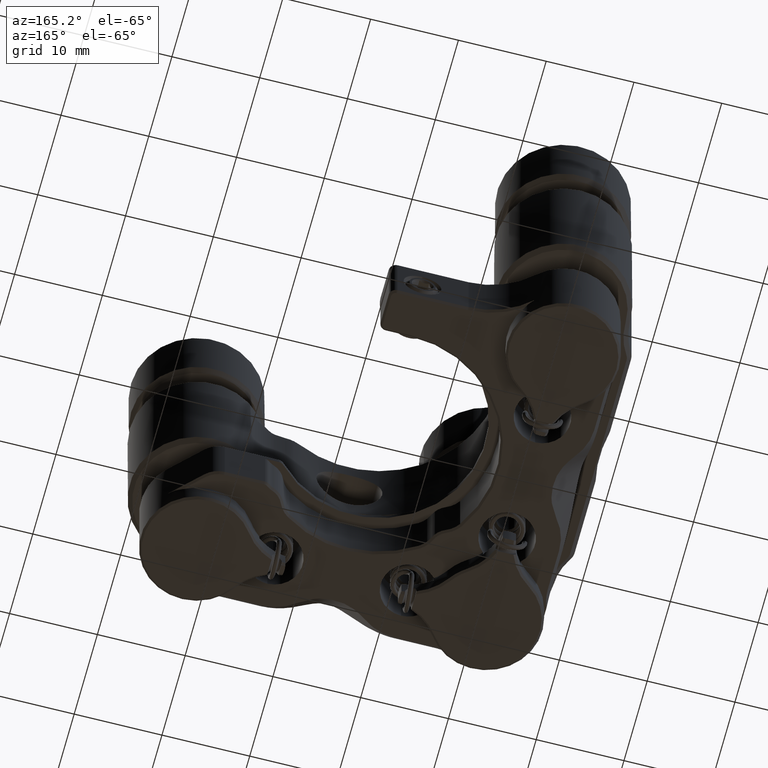
[diagram: clean part render]
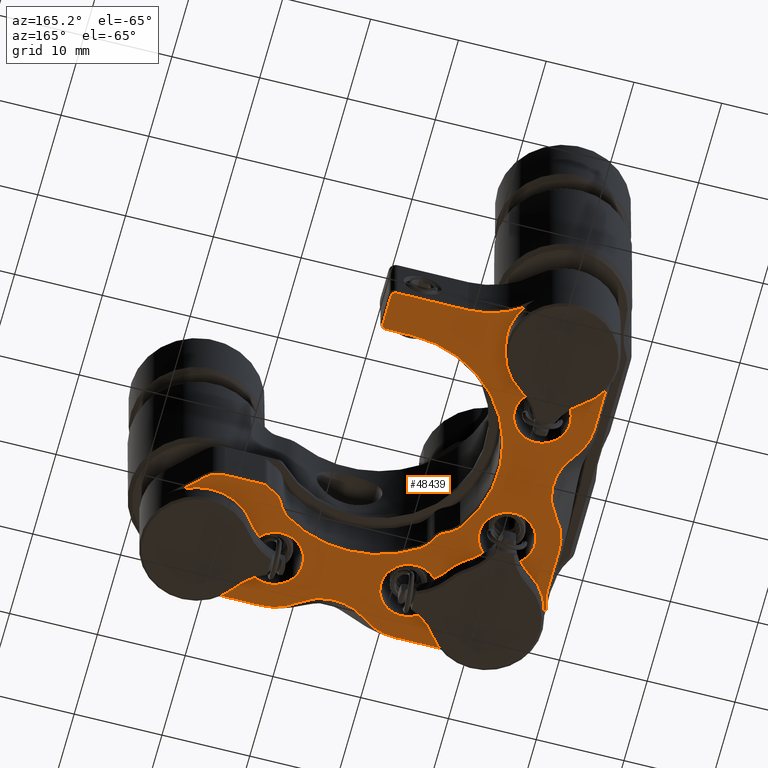
[diagram: same view with one face highlighted and labeled with its STEP entity id]
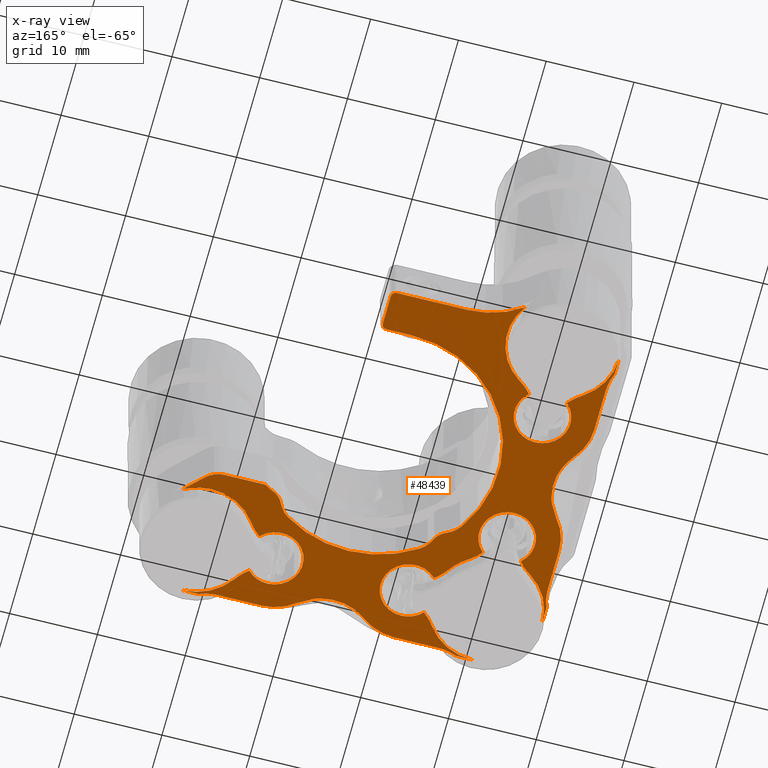
[diagram: x-ray of the same camera — body ghosted, the highlighted face saturated]
A machine part, auxiliary view. The second image highlights one B-rep face of the part: STEP entity #48439.
The next image is the same camera in x-ray: the body ghosted, the highlighted face saturated — about 0% of this face is hidden behind the body in this view.
In plain terms, the highlighted planar face has unit normal (0, 0, -1).
Its self-contained STEP definition (entity closure, byte-faithful):
#6 = EDGE_CURVE ( 'NONE', #59209, #39940, #58303, .T. ) ;
#123 = CARTESIAN_POINT ( 'NONE',  ( 8.861151733613590764, 36.24409739724867308, 15.51670909685328681 ) ) ;
#201 = LINE ( 'NONE', #34823, #49098 ) ;
#246 = ORIENTED_EDGE ( 'NONE', *, *, #6, .T. ) ;
#331 = VECTOR ( 'NONE', #18007, 1000.000000000000000 ) ;
#342 = CARTESIAN_POINT ( 'NONE',  ( 32.82147725212203682, 6.200771981201799399, 15.51670909685364919 ) ) ;
#688 = CARTESIAN_POINT ( 'NONE',  ( 18.91631536147838233, 6.300591055868965285, 15.51670909685326727 ) ) ;
#734 = EDGE_CURVE ( 'NONE', #24087, #38445, #39367, .T. ) ;
#787 = EDGE_CURVE ( 'NONE', #6134, #23797, #12484, .T. ) ;
#904 = DIRECTION ( 'NONE',  ( 6.283250385428280888E-15, 1.000000000000000000, 0.000000000000000000 ) ) ;
#1234 = CARTESIAN_POINT ( 'NONE',  ( 10.96324984578454398, 34.55253646458597672, 15.51670909685328681 ) ) ;
#1272 = ORIENTED_EDGE ( 'NONE', *, *, #24888, .T. ) ;
#1330 = CARTESIAN_POINT ( 'NONE',  ( 21.24115165186079324, 7.293800976714504891, 15.51670909685326016 ) ) ;
#1339 = CIRCLE ( 'NONE', #19938, 5.983382579064568496 ) ;
#1415 = DIRECTION ( 'NONE',  ( -1.000000000000000000, 1.702056126997398298E-37, -6.132303471447325083E-21 ) ) ;
#1460 = ORIENTED_EDGE ( 'NONE', *, *, #25270, .T. ) ;
#1519 = CIRCLE ( 'NONE', #55223, 2.250000000044598103 ) ;
#1533 = AXIS2_PLACEMENT_3D ( 'NONE', #43255, #38082, #47164 ) ;
#2179 = CARTESIAN_POINT ( 'NONE',  ( 5.296791629168940752, 17.36936494950912291, 15.51670909685329214 ) ) ;
#2299 = CARTESIAN_POINT ( 'NONE',  ( 17.88407073383996959, 17.33046564734517148, 15.51670909686848709 ) ) ;
#2327 = CARTESIAN_POINT ( 'NONE',  ( 14.11641928587390105, 15.67845750169307628, 15.51670909685329391 ) ) ;
#2604 = EDGE_CURVE ( 'NONE', #32705, #53474, #50886, .T. ) ;
#2675 = CARTESIAN_POINT ( 'NONE',  ( 10.96324984578454398, 6.198773913061335961, 15.51670909685328681 ) ) ;
#2817 = CARTESIAN_POINT ( 'NONE',  ( 3.360655762899047883, 23.24447991452392159, 15.51670909685326905 ) ) ;
#2838 = CARTESIAN_POINT ( 'NONE',  ( 10.96324984578454398, 20.51409739724833869, 15.51670909685328681 ) ) ;
#3028 = EDGE_CURVE ( 'NONE', #20795, #56410, #6448, .T. ) ;
#3265 = AXIS2_PLACEMENT_3D ( 'NONE', #25042, #59016, #49627 ) ;
#3586 = EDGE_CURVE ( 'NONE', #10754, #62251, #13823, .T. ) ;
#3608 = CIRCLE ( 'NONE', #1533, 2.750000000021686652 ) ;
#3896 = VERTEX_POINT ( 'NONE', #48770 ) ;
#3919 = CARTESIAN_POINT ( 'NONE',  ( 3.205602832408788849, 34.44357408373780061, 15.51670909685337030 ) ) ;
#3965 = DIRECTION ( 'NONE',  ( -5.334593189754186989E-14, 1.000000000000000000, 3.769006057978502123E-15 ) ) ;
#4066 = DIRECTION ( 'NONE',  ( 6.132303471447325835E-21, 2.775557561562890427E-17, -1.000000000000000000 ) ) ;
#4231 = AXIS2_PLACEMENT_3D ( 'NONE', #61749, #31984, #7710 ) ;
#4276 = AXIS2_PLACEMENT_3D ( 'NONE', #5676, #59716, #15376 ) ;
#4791 = ORIENTED_EDGE ( 'NONE', *, *, #18426, .T. ) ;
#4939 = ORIENTED_EDGE ( 'NONE', *, *, #56791, .T. ) ;
#5001 = AXIS2_PLACEMENT_3D ( 'NONE', #18728, #18413, #39117 ) ;
#5024 = CARTESIAN_POINT ( 'NONE',  ( 36.11917480764878263, 17.87607432321287604, 15.51670909676001386 ) ) ;
#5091 = AXIS2_PLACEMENT_3D ( 'NONE', #13335, #12702, #47960 ) ;
#5140 = DIRECTION ( 'NONE',  ( -0.000000000000000000, 0.000000000000000000, -1.000000000000000000 ) ) ;
#5197 = CARTESIAN_POINT ( 'NONE',  ( 30.15680403972596224, 6.888988158281437180, 15.51670909685328503 ) ) ;
#5397 = VERTEX_POINT ( 'NONE', #31113 ) ;
#5513 = CARTESIAN_POINT ( 'NONE',  ( 30.49562727661677286, 6.722090202084543442, 15.51670909685326016 ) ) ;
#5630 = AXIS2_PLACEMENT_3D ( 'NONE', #59307, #49279, #18857 ) ;
#5676 = CARTESIAN_POINT ( 'NONE',  ( 25.37115173361324949, 28.62409739724837365, 15.51670909685328503 ) ) ;
#6082 = EDGE_CURVE ( 'NONE', #20523, #8197, #31143, .T. ) ;
#6134 = VERTEX_POINT ( 'NONE', #18120 ) ;
#6192 = VERTEX_POINT ( 'NONE', #28796 ) ;
#6388 = LINE ( 'NONE', #15760, #8725 ) ;
#6404 = CARTESIAN_POINT ( 'NONE',  ( 36.62588418135264590, 8.549737292803969879, 15.51670909685329214 ) ) ;
#6448 = CIRCLE ( 'NONE', #42620, 6.477000000000003865 ) ;
#6608 = DIRECTION ( 'NONE',  ( -6.132303471447325083E-21, -2.775557561562890118E-17, 1.000000000000000000 ) ) ;
#6645 = CARTESIAN_POINT ( 'NONE',  ( 23.26851492442139602, 8.654519140300910962, 15.51670909685329747 ) ) ;
#6753 = EDGE_CURVE ( 'NONE', #17567, #24087, #44560, .T. ) ;
#6768 = DIRECTION ( 'NONE',  ( -0.000000000000000000, 0.000000000000000000, -1.000000000000000000 ) ) ;
#6779 = VERTEX_POINT ( 'NONE', #58479 ) ;
#6826 = CARTESIAN_POINT ( 'NONE',  ( 19.64722771176871063, 6.488614178602328586, 15.51670909685330102 ) ) ;
#6830 = CARTESIAN_POINT ( 'NONE',  ( 36.62588418135266721, 15.67845750169266594, 15.51670909685329214 ) ) ;
#6909 = ORIENTED_EDGE ( 'NONE', *, *, #45809, .T. ) ;
#7024 = DIRECTION ( 'NONE',  ( -0.000000000000000000, -1.000000000000000000, -2.775557561562890118E-17 ) ) ;
#7353 = CARTESIAN_POINT ( 'NONE',  ( 2.989157444325956536, 21.79792456913160947, 15.51670909685325661 ) ) ;
#7390 = DIRECTION ( 'NONE',  ( 0.000000000000000000, 1.000000000000000000, 0.000000000000000000 ) ) ;
#7499 = AXIS2_PLACEMENT_3D ( 'NONE', #24918, #30092, #34950 ) ;
#7555 = ORIENTED_EDGE ( 'NONE', *, *, #46094, .T. ) ;
#7710 = DIRECTION ( 'NONE',  ( 1.000000000000000000, 0.000000000000000000, 0.000000000000000000 ) ) ;
#7727 = AXIS2_PLACEMENT_3D ( 'NONE', #57987, #57355, #17868 ) ;
#8180 = ORIENTED_EDGE ( 'NONE', *, *, #734, .T. ) ;
#8197 = VERTEX_POINT ( 'NONE', #54509 ) ;
#8218 = CARTESIAN_POINT ( 'NONE',  ( 2.945828249426302836, 16.17809739724860307, 15.51670909685330280 ) ) ;
#8451 = DIRECTION ( 'NONE',  ( 0.000000000000000000, -1.000000000000000000, 0.000000000000000000 ) ) ;
#8565 = CIRCLE ( 'NONE', #12715, 6.476999999999982549 ) ;
#8575 = EDGE_CURVE ( 'NONE', #51565, #15651, #17716, .T. ) ;
#8725 = VECTOR ( 'NONE', #7024, 1000.000000000000000 ) ;
#8765 = CARTESIAN_POINT ( 'NONE',  ( 3.636042494646491985, 33.40974970336109351, 15.51670909685339872 ) ) ;
#9079 = CARTESIAN_POINT ( 'NONE',  ( 2.511151733613385062, 12.11409739724846446, 15.51670909685329214 ) ) ;
#9350 = AXIS2_PLACEMENT_3D ( 'NONE', #46199, #16421, #60444 ) ;
#9490 = EDGE_CURVE ( 'NONE', #35488, #35011, #21102, .T. ) ;
#9589 = LINE ( 'NONE', #29005, #331 ) ;
#10047 = CARTESIAN_POINT ( 'NONE',  ( 31.54160748197473652, 6.362522059170191646, 15.51670909685327615 ) ) ;
#10389 = CARTESIAN_POINT ( 'NONE',  ( 20.32514561912553219, 6.758897102430996284, 15.51670909685328326 ) ) ;
#10432 = AXIS2_PLACEMENT_3D ( 'NONE', #18753, #62144, #62463 ) ;
#10601 = VERTEX_POINT ( 'NONE', #39720 ) ;
#10629 = DIRECTION ( 'NONE',  ( 1.000000000000000000, 3.154042683407997382E-14, 0.000000000000000000 ) ) ;
#10754 = VERTEX_POINT ( 'NONE', #41959 ) ;
#10927 = EDGE_CURVE ( 'NONE', #38445, #6134, #6388, .T. ) ;
#11012 = CARTESIAN_POINT ( 'NONE',  ( 31.19062842010267289, 6.458548496043701626, 15.51670909685327437 ) ) ;
#11073 = ORIENTED_EDGE ( 'NONE', *, *, #18788, .T. ) ;
#11114 = CARTESIAN_POINT ( 'NONE',  ( 14.11641928587395078, 8.549737292803968103, 15.51670909685329214 ) ) ;
#11177 = CARTESIAN_POINT ( 'NONE',  ( 27.47378854280558258, 8.654519140300832802, 15.51670909685328326 ) ) ;
#11209 = VERTEX_POINT ( 'NONE', #62326 ) ;
#11537 = CARTESIAN_POINT ( 'NONE',  ( 14.13963386371304765, 48.66398782079158281, 15.51670909685298660 ) ) ;
#11539 = EDGE_CURVE ( 'NONE', #40010, #3896, #1519, .T. ) ;
#11760 = CARTESIAN_POINT ( 'NONE',  ( 10.96324984578454398, 42.17409739724836015, 15.51670909685328681 ) ) ;
#11902 = DIRECTION ( 'NONE',  ( 0.000000000000000000, 1.000000000000000000, 2.775557561562890118E-17 ) ) ;
#12126 = CARTESIAN_POINT ( 'NONE',  ( 29.22754810973619755, 7.506371735881634422, 15.51670909685328503 ) ) ;
#12402 = ORIENTED_EDGE ( 'NONE', *, *, #12708, .T. ) ;
#12441 = CIRCLE ( 'NONE', #45468, 3.175000000000000711 ) ;
#12474 = EDGE_CURVE ( 'NONE', #43755, #60164, #33523, .T. ) ;
#12484 = CIRCLE ( 'NONE', #56930, 0.5499999999756255420 ) ;
#12531 = VECTOR ( 'NONE', #38745, 1000.000000000000000 ) ;
#12576 = CARTESIAN_POINT ( 'NONE',  ( 11.01400189239910787, 38.57773429998594139, 15.51670909685328681 ) ) ;
#12702 = DIRECTION ( 'NONE',  ( 6.132303471447325083E-21, 2.775557561562890118E-17, -1.000000000000000000 ) ) ;
#12708 = EDGE_CURVE ( 'NONE', #17506, #37340, #16568, .T. ) ;
#12715 = AXIS2_PLACEMENT_3D ( 'NONE', #38447, #13222, #37817 ) ;
#13027 = CARTESIAN_POINT ( 'NONE',  ( 44.94700560386390009, 17.67494625747351833, 15.51670909685328859 ) ) ;
#13102 = CARTESIAN_POINT ( 'NONE',  ( 34.05050991263693305, 18.76101813623516534, 15.51670909684893651 ) ) ;
#13186 = VECTOR ( 'NONE', #1415, 1000.000000000000000 ) ;
#13222 = DIRECTION ( 'NONE',  ( 6.132303471447325083E-21, 2.775557561562890118E-17, -1.000000000000000000 ) ) ;
#13246 = CARTESIAN_POINT ( 'NONE',  ( 6.708301574827993718, 18.67046049451100487, 15.51670909685329391 ) ) ;
#13303 = CARTESIAN_POINT ( 'NONE',  ( 2.945828249426485357, 36.18992986962069125, 15.51670909685328681 ) ) ;
#13335 = CARTESIAN_POINT ( 'NONE',  ( 1.661144322635577764, 22.72973785281526915, 15.51670909685329391 ) ) ;
#13350 = EDGE_CURVE ( 'NONE', #56410, #6192, #51960, .T. ) ;
#13360 = DIRECTION ( 'NONE',  ( -6.132303471447325835E-21, -2.775557561562890427E-17, 1.000000000000000000 ) ) ;
#13561 = DIRECTION ( 'NONE',  ( -1.000000000000000000, 1.702056126997398298E-37, -6.132303471447325083E-21 ) ) ;
#13581 = CIRCLE ( 'NONE', #46666, 3.174999999999998934 ) ;
#13673 = VERTEX_POINT ( 'NONE', #2179 ) ;
#13718 = DIRECTION ( 'NONE',  ( 6.132303471447325083E-21, 2.775557561562890118E-17, -1.000000000000000000 ) ) ;
#13823 = LINE ( 'NONE', #28708, #64023 ) ;
#13935 = CARTESIAN_POINT ( 'NONE',  ( 2.951820773749881166, 35.84350613336765434, 15.51670909685344313 ) ) ;
#13952 = CIRCLE ( 'NONE', #18048, 5.983382579064860707 ) ;
#14198 = CARTESIAN_POINT ( 'NONE',  ( 12.92515173361337588, 6.198773913061372376, 15.51670909685337918 ) ) ;
#14256 = CARTESIAN_POINT ( 'NONE',  ( 20.12614174692483715, 46.73409739724846190, 15.51670909685329036 ) ) ;
#14501 = CARTESIAN_POINT ( 'NONE',  ( 14.07751998369066548, 21.13701639748477490, 15.51670909682699140 ) ) ;
#14524 = CIRCLE ( 'NONE', #9350, 6.349999999999823785 ) ;
#14780 = VERTEX_POINT ( 'NONE', #17072 ) ;
#15026 = EDGE_CURVE ( 'NONE', #39151, #20523, #9589, .T. ) ;
#15095 = ORIENTED_EDGE ( 'NONE', *, *, #57775, .T. ) ;
#15154 = CARTESIAN_POINT ( 'NONE',  ( 20.12614174692483715, 56.98409739724844059, 15.51670909685329214 ) ) ;
#15273 = DIRECTION ( 'NONE',  ( 4.270088556252530661E-15, 1.000000000000000000, 0.000000000000000000 ) ) ;
#15376 = DIRECTION ( 'NONE',  ( -1.000000000000000000, 0.000000000000000000, 0.000000000000000000 ) ) ;
#15642 = AXIS2_PLACEMENT_3D ( 'NONE', #63440, #43061, #28188 ) ;
#15651 = VERTEX_POINT ( 'NONE', #37044 ) ;
#15760 = CARTESIAN_POINT ( 'NONE',  ( 28.76115173361358401, 34.55253646458597672, 15.51670909685328681 ) ) ;
#15795 = DIRECTION ( 'NONE',  ( 0.000000000000000000, 1.000000000000000000, -1.692413147294446709E-16 ) ) ;
#15853 = CARTESIAN_POINT ( 'NONE',  ( 32.93698420598570209, 6.198773913061456753, 15.51670909685328681 ) ) ;
#15881 = CARTESIAN_POINT ( 'NONE',  ( 18.17284445048737140, 6.205515148600373010, 15.51670909685326727 ) ) ;
#16202 = CARTESIAN_POINT ( 'NONE',  ( 20.94762844787134526, 7.099236543531233679, 15.51670909685329036 ) ) ;
#16211 = EDGE_CURVE ( 'NONE', #34321, #45787, #41530, .T. ) ;
#16421 = DIRECTION ( 'NONE',  ( -6.132303471447325835E-21, -2.775557561562890427E-17, 1.000000000000000000 ) ) ;
#16472 = ORIENTED_EDGE ( 'NONE', *, *, #54048, .T. ) ;
#16555 = DIRECTION ( 'NONE',  ( -0.000000000000000000, 2.668805347638552396E-16, 1.000000000000000000 ) ) ;
#16568 = LINE ( 'NONE', #59945, #45745 ) ;
#16619 = ORIENTED_EDGE ( 'NONE', *, *, #40320, .F. ) ;
#16938 = EDGE_CURVE ( 'NONE', #5397, #30562, #51802, .T. ) ;
#17059 = CIRCLE ( 'NONE', #7727, 3.249999999940699436 ) ;
#17072 = CARTESIAN_POINT ( 'NONE',  ( 29.22754810973619755, 7.506371735881634422, 15.51670909685328503 ) ) ;
#17506 = VERTEX_POINT ( 'NONE', #53406 ) ;
#17567 = VERTEX_POINT ( 'NONE', #14256 ) ;
#17625 = EDGE_CURVE ( 'NONE', #3896, #19634, #36357, .T. ) ;
#17679 = CARTESIAN_POINT ( 'NONE',  ( 4.182549286673516775, 24.67647421621652271, 15.51670909685326549 ) ) ;
#17716 = CIRCLE ( 'NONE', #54907, 6.476999999999836888 ) ;
#17868 = DIRECTION ( 'NONE',  ( 0.000000000000000000, 1.000000000000000000, -5.337610695410644152E-16 ) ) ;
#17961 = ORIENTED_EDGE ( 'NONE', *, *, #38799, .F. ) ;
#18007 = DIRECTION ( 'NONE',  ( 0.000000000000000000, 1.000000000000000000, 2.775557561562890118E-17 ) ) ;
#18048 = AXIS2_PLACEMENT_3D ( 'NONE', #43429, #32452, #3965 ) ;
#18120 = CARTESIAN_POINT ( 'NONE',  ( 28.76115173361511879, 42.72409739724837863, 15.51670909685481803 ) ) ;
#18201 = VERTEX_POINT ( 'NONE', #62058 ) ;
#18203 = DIRECTION ( 'NONE',  ( 6.132303471447325835E-21, 2.775557561562890427E-17, -1.000000000000000000 ) ) ;
#18413 = DIRECTION ( 'NONE',  ( 6.132303471447325835E-21, 2.775557561562890427E-17, -1.000000000000000000 ) ) ;
#18426 = EDGE_CURVE ( 'NONE', #44643, #47447, #35635, .T. ) ;
#18509 = CIRCLE ( 'NONE', #5091, 6.477000000000010971 ) ;
#18532 = CARTESIAN_POINT ( 'NONE',  ( 5.296791629169076643, 39.87882984498773453, 15.51670909685328681 ) ) ;
#18610 = EDGE_CURVE ( 'NONE', #45606, #40010, #17059, .T. ) ;
#18728 = CARTESIAN_POINT ( 'NONE',  ( 8.861151733613590764, 45.13409739724845338, 15.51670909685329569 ) ) ;
#18753 = CARTESIAN_POINT ( 'NONE',  ( -3.037554329637905060, 41.07009739724858122, 15.51670909685332056 ) ) ;
#18788 = EDGE_CURVE ( 'NONE', #62251, #25950, #13952, .T. ) ;
#18857 = DIRECTION ( 'NONE',  ( 0.000000000000000000, 1.000000000000000000, 0.000000000000000000 ) ) ;
#18922 = VERTEX_POINT ( 'NONE', #58306 ) ;
#19102 = CARTESIAN_POINT ( 'NONE',  ( 2.511151733613397496, 13.93918513655420455, 15.51670909685332056 ) ) ;
#19103 = CARTESIAN_POINT ( 'NONE',  ( 2.984330582708210944, 35.49285773074529970, 15.51670909685335609 ) ) ;
#19203 = DIRECTION ( 'NONE',  ( 0.000000000000000000, 1.000000000000000000, 0.000000000000000000 ) ) ;
#19249 = DIRECTION ( 'NONE',  ( 6.132303471447325083E-21, 2.775557561562890118E-17, -1.000000000000000000 ) ) ;
#19426 = CARTESIAN_POINT ( 'NONE',  ( 29.83087531789895408, 7.076290245509283316, 15.51670909685323529 ) ) ;
#19474 = ORIENTED_EDGE ( 'NONE', *, *, #31188, .T. ) ;
#19634 = VERTEX_POINT ( 'NONE', #2299 ) ;
#19651 = ORIENTED_EDGE ( 'NONE', *, *, #3028, .T. ) ;
#19928 = DIRECTION ( 'NONE',  ( 0.000000000000000000, 1.000000000000000000, 2.775557561562890118E-17 ) ) ;
#19938 = AXIS2_PLACEMENT_3D ( 'NONE', #62604, #58058, #62919 ) ;
#19956 = ORIENTED_EDGE ( 'NONE', *, *, #6082, .T. ) ;
#20063 = ORIENTED_EDGE ( 'NONE', *, *, #16938, .T. ) ;
#20066 = CARTESIAN_POINT ( 'NONE',  ( 31.88967203947446549, 6.289260529385912513, 15.51670909685325128 ) ) ;
#20080 = AXIS2_PLACEMENT_3D ( 'NONE', #40841, #16555, #15273 ) ;
#20507 = ORIENTED_EDGE ( 'NONE', *, *, #34678, .T. ) ;
#20523 = VERTEX_POINT ( 'NONE', #46241 ) ;
#20669 = AXIS2_PLACEMENT_3D ( 'NONE', #21108, #19249, #59053 ) ;
#20740 = CARTESIAN_POINT ( 'NONE',  ( 21.42352855258135946, 7.435494950308494388, 15.51670909685326905 ) ) ;
#20795 = VERTEX_POINT ( 'NONE', #54978 ) ;
#21066 = CARTESIAN_POINT ( 'NONE',  ( 19.99153425088872993, 6.613601426534001071, 15.51670909685326727 ) ) ;
#21102 = CIRCLE ( 'NONE', #20080, 3.249999999998531841 ) ;
#21108 = CARTESIAN_POINT ( 'NONE',  ( 16.06115914459125449, 22.72973785281512349, 15.51670909685329391 ) ) ;
#21116 = DIRECTION ( 'NONE',  ( 0.7071067811865523467, -0.7071067811865426878, 0.000000000000000000 ) ) ;
#21195 = ORIENTED_EDGE ( 'NONE', *, *, #55812, .T. ) ;
#21421 = CARTESIAN_POINT ( 'NONE',  ( 15.41751483087560537, 9.961247238463032616, 15.51670909685329214 ) ) ;
#21469 = LINE ( 'NONE', #11760, #13186 ) ;
#21493 = DIRECTION ( 'NONE',  ( 0.000000000000000000, 1.000000000000000000, 0.000000000000000000 ) ) ;
#21523 = CARTESIAN_POINT ( 'NONE',  ( 21.51475535749061052, 7.506371735881695706, 15.51670909685328503 ) ) ;
#21837 = CARTESIAN_POINT ( 'NONE',  ( 28.64296158742597598, 7.889087537354722457, 15.51670909685327970 ) ) ;
#22114 = CARTESIAN_POINT ( 'NONE',  ( 15.50807247261031030, 19.94473921831493612, 15.51670909689340228 ) ) ;
#22265 = AXIS2_PLACEMENT_3D ( 'NONE', #123, #53835, #44129 ) ;
#22289 = EDGE_CURVE ( 'NONE', #36615, #15651, #27767, .T. ) ;
#22544 = CARTESIAN_POINT ( 'NONE',  ( 3.667152124639446953, 23.89515677570729935, 15.51670909685327082 ) ) ;
#22564 = DIRECTION ( 'NONE',  ( 1.000000000000000000, -1.702056126997398298E-37, 6.132303471447325083E-21 ) ) ;
#22684 = CARTESIAN_POINT ( 'NONE',  ( 4.253426072246768719, 32.48049377337135013, 15.51670909685328681 ) ) ;
#22877 = CIRCLE ( 'NONE', #56954, 2.249999999909470194 ) ;
#22973 = AXIS2_PLACEMENT_3D ( 'NONE', #29118, #28482, #52747 ) ;
#23269 = CARTESIAN_POINT ( 'NONE',  ( 10.96324984578454398, 6.198773913061443430, 15.51670909685328681 ) ) ;
#23311 = AXIS2_PLACEMENT_3D ( 'NONE', #50264, #59972, #61256 ) ;
#23457 = VERTEX_POINT ( 'NONE', #55924 ) ;
#23641 = CARTESIAN_POINT ( 'NONE',  ( 2.947826317567121990, 36.07442291575709703, 15.51670909685322819 ) ) ;
#23652 = EDGE_CURVE ( 'NONE', #11209, #48372, #62044, .T. ) ;
#23756 = DIRECTION ( 'NONE',  ( -1.000000000000000000, 3.202566417192030819E-15, 0.000000000000000000 ) ) ;
#23797 = VERTEX_POINT ( 'NONE', #43259 ) ;
#23866 = ORIENTED_EDGE ( 'NONE', *, *, #8575, .T. ) ;
#23946 = AXIS2_PLACEMENT_3D ( 'NONE', #28288, #13718, #19203 ) ;
#24033 = LINE ( 'NONE', #54438, #43088 ) ;
#24087 = VERTEX_POINT ( 'NONE', #33869 ) ;
#24395 = CARTESIAN_POINT ( 'NONE',  ( 4.253426072246713652, 24.76770102112579153, 15.51670909685328681 ) ) ;
#24612 = CARTESIAN_POINT ( 'NONE',  ( 32.59056046973253018, 6.204766437384852118, 15.51670909685307009 ) ) ;
#24753 = CARTESIAN_POINT ( 'NONE',  ( 8.861151733613590764, 45.13409739724845338, 15.51670909685328681 ) ) ;
#24867 = CARTESIAN_POINT ( 'NONE',  ( 5.401573476665959994, 26.52146058805654505, 15.51670909685328859 ) ) ;
#24888 = EDGE_CURVE ( 'NONE', #23457, #30810, #62202, .T. ) ;
#24918 = CARTESIAN_POINT ( 'NONE',  ( 25.37115173361325304, 28.62409739724837365, 15.51670909685328681 ) ) ;
#25042 = CARTESIAN_POINT ( 'NONE',  ( 8.861151733613427339, 21.00409739724835134, 15.51670909685329391 ) ) ;
#25270 = EDGE_CURVE ( 'NONE', #30562, #13673, #18509, .T. ) ;
#25508 = CARTESIAN_POINT ( 'NONE',  ( 36.38837376055408868, 19.96409739724833088, 15.51670909682417054 ) ) ;
#25911 = CARTESIAN_POINT ( 'NONE',  ( 37.81715173361354232, 6.198773913061422114, 15.51670909685332767 ) ) ;
#25950 = VERTEX_POINT ( 'NONE', #25911 ) ;
#25971 = EDGE_CURVE ( 'NONE', #18201, #23457, #27099, .T. ) ;
#26074 = CARTESIAN_POINT ( 'NONE',  ( 40.05606399430840270, 5.764097397248334254, 15.51670909685333122 ) ) ;
#26468 = PLANE ( 'NONE',  #51837 ) ;
#26681 = CARTESIAN_POINT ( 'NONE',  ( 14.62312865957770747, 17.87607432321287959, 15.51670909688273170 ) ) ;
#26718 = CARTESIAN_POINT ( 'NONE',  ( 34.08404356123062939, 22.98569669769931778, 15.51670909685011246 ) ) ;
#26778 = CARTESIAN_POINT ( 'NONE',  ( 4.040855313079537936, 24.49409731549598490, 15.51670909685326727 ) ) ;
#26816 = DIRECTION ( 'NONE',  ( -3.026003786644227922E-30, -2.899235429214355169E-16, 1.000000000000000000 ) ) ;
#26965 = ORIENTED_EDGE ( 'NONE', *, *, #13350, .T. ) ;
#27099 = B_SPLINE_CURVE_WITH_KNOTS ( 'NONE', 3,
 ( #45330, #20740, #1330, #16202, #40476, #10389, #21066, #6826, #60545, #688, #49866, #15881, #60862, #59577 ),
 .UNSPECIFIED., .F., .F.,
 ( 4, 1, 1, 1, 1, 1, 1, 1, 1, 1, 1, 4 ),
 ( 0.000000000000000000, 0.0003497547461281944655, 0.0006992153969944598681, 0.001049534730473287080, 0.001401809981072326631, 0.001757101587139718200, 0.002137688408780979120, 0.002515575518403236933, 0.002889785354124300813, 0.003261576129707187237, 0.003632249136043852553, 0.004003172883301332405 ),
 .UNSPECIFIED. ) ;
#27321 = ORIENTED_EDGE ( 'NONE', *, *, #39679, .T. ) ;
#27602 = ORIENTED_EDGE ( 'NONE', *, *, #61150, .T. ) ;
#27767 = CIRCLE ( 'NONE', #5001, 6.350000000000057376 ) ;
#27925 = DIRECTION ( 'NONE',  ( 0.000000000000000000, -1.000000000000000000, 0.000000000000000000 ) ) ;
#28076 = CARTESIAN_POINT ( 'NONE',  ( -3.037554329638286532, 16.17809739724862794, 15.51670909685332056 ) ) ;
#28188 = DIRECTION ( 'NONE',  ( -1.000000000000000000, 0.000000000000000000, 0.000000000000000000 ) ) ;
#28288 = CARTESIAN_POINT ( 'NONE',  ( 31.26551127804619412, 4.914089986270433030, 15.51670909685329214 ) ) ;
#28393 = DIRECTION ( 'NONE',  ( 6.132303471447325083E-21, 2.775557561562890118E-17, -1.000000000000000000 ) ) ;
#28482 = DIRECTION ( 'NONE',  ( 6.132303471447325083E-21, 2.775557561562890118E-17, -1.000000000000000000 ) ) ;
#28508 = CARTESIAN_POINT ( 'NONE',  ( 3.469144538449616455, 33.74857294025190413, 15.51670909685336497 ) ) ;
#28708 = CARTESIAN_POINT ( 'NONE',  ( 41.88115173361337185, 5.764097397248330701, 15.51670909685329214 ) ) ;
#28796 = CARTESIAN_POINT ( 'NONE',  ( 12.42551183805776382, 17.36936494950929344, 15.51670909685329391 ) ) ;
#28818 = ORIENTED_EDGE ( 'NONE', *, *, #31355, .T. ) ;
#29005 = CARTESIAN_POINT ( 'NONE',  ( 2.945828249426484025, 34.55253646458597672, 15.51670909685328681 ) ) ;
#29118 = CARTESIAN_POINT ( 'NONE',  ( 19.47679218917987143, 4.914089986270611554, 15.51670909685329214 ) ) ;
#29146 = CARTESIAN_POINT ( 'NONE',  ( 4.028206024205502445, 32.77100390907628480, 15.51670909685336142 ) ) ;
#29277 = ORIENTED_EDGE ( 'NONE', *, *, #6753, .T. ) ;
#29416 = CARTESIAN_POINT ( 'NONE',  ( 35.32478863635061117, 9.961247238462922482, 15.51670909685329214 ) ) ;
#29467 = CARTESIAN_POINT ( 'NONE',  ( 29.22754810973619755, 7.506371735881634422, 15.51670909685328503 ) ) ;
#29507 = CARTESIAN_POINT ( 'NONE',  ( 41.88115173361337185, 5.764097397248330701, 15.51670909685329214 ) ) ;
#29591 = ORIENTED_EDGE ( 'NONE', *, *, #63091, .T. ) ;
#29702 = VERTEX_POINT ( 'NONE', #50173 ) ;
#29785 = CARTESIAN_POINT ( 'NONE',  ( 30.84405358100747563, 6.577100956720224545, 15.51670909685328681 ) ) ;
#29889 = B_SPLINE_CURVE_WITH_KNOTS ( 'NONE', 3,
 ( #42283, #46514, #42921, #7353, #52629, #52314, #37432, #2817, #31945, #22544, #62023, #26778, #17679, #56843 ),
 .UNSPECIFIED., .F., .F.,
 ( 4, 1, 1, 1, 1, 1, 1, 1, 1, 1, 1, 4 ),
 ( 3.496446946337351263E-18, 0.0003687888397202533403, 0.0007373283816968955384, 0.001106979259430352974, 0.001479035274036738902, 0.001854747397440102653, 0.002233143694263013332, 0.002586390365938077626, 0.002936638043233334543, 0.003284941060984178634, 0.003632390338399659954, 0.003980132018367484557 ),
 .UNSPECIFIED. ) ;
#30092 = DIRECTION ( 'NONE',  ( -0.000000000000000000, 6.401193638290808678E-17, 1.000000000000000000 ) ) ;
#30562 = VERTEX_POINT ( 'NONE', #13246 ) ;
#30810 = VERTEX_POINT ( 'NONE', #14198 ) ;
#30904 = EDGE_CURVE ( 'NONE', #25950, #61272, #43650, .T. ) ;
#31109 = VECTOR ( 'NONE', #53449, 1000.000000000000000 ) ;
#31113 = CARTESIAN_POINT ( 'NONE',  ( 11.01400189239878813, 18.67046049451093381, 15.51670909685329391 ) ) ;
#31143 = CIRCLE ( 'NONE', #10432, 5.983382579064347340 ) ;
#31188 = EDGE_CURVE ( 'NONE', #18922, #11209, #61534, .T. ) ;
#31278 = EDGE_CURVE ( 'NONE', #32154, #6779, #53068, .T. ) ;
#31355 = EDGE_CURVE ( 'NONE', #36615, #17567, #47080, .T. ) ;
#31733 = CARTESIAN_POINT ( 'NONE',  ( 32.85823273340142237, 17.33046564732236661, 15.51670909687152822 ) ) ;
#31815 = ORIENTED_EDGE ( 'NONE', *, *, #15026, .T. ) ;
#31945 = CARTESIAN_POINT ( 'NONE',  ( 3.505951438796027997, 23.57809128276068478, 15.51670909685327082 ) ) ;
#31984 = DIRECTION ( 'NONE',  ( -0.000000000000000000, 0.000000000000000000, -1.000000000000000000 ) ) ;
#32154 = VERTEX_POINT ( 'NONE', #24395 ) ;
#32319 = VERTEX_POINT ( 'NONE', #36346 ) ;
#32452 = DIRECTION ( 'NONE',  ( 3.769006057978492657E-15, -3.769006057978508434E-15, 1.000000000000000000 ) ) ;
#32705 = VERTEX_POINT ( 'NONE', #11114 ) ;
#33040 = CARTESIAN_POINT ( 'NONE',  ( 32.99115173361312969, 12.11409739724819978, 15.51670909685329214 ) ) ;
#33189 = CARTESIAN_POINT ( 'NONE',  ( 28.76115173361511879, 46.18409739724843632, 15.51670909685481980 ) ) ;
#33255 = CIRCLE ( 'NONE', #53916, 6.349999999999912603 ) ;
#33523 = CIRCLE ( 'NONE', #5630, 6.477000000000142421 ) ;
#33869 = CARTESIAN_POINT ( 'NONE',  ( 28.21115173361358330, 46.73409739724998246, 15.51670909685481980 ) ) ;
#34305 = ORIENTED_EDGE ( 'NONE', *, *, #31278, .T. ) ;
#34321 = VERTEX_POINT ( 'NONE', #29416 ) ;
#34394 = DIRECTION ( 'NONE',  ( 6.826743284340431398E-15, 1.000000000000000000, 0.000000000000000000 ) ) ;
#34409 = AXIS2_PLACEMENT_3D ( 'NONE', #26718, #46455, #23756 ) ;
#34678 = EDGE_CURVE ( 'NONE', #56182, #18922, #35413, .T. ) ;
#34682 = EDGE_CURVE ( 'NONE', #30810, #59209, #1339, .T. ) ;
#34823 = CARTESIAN_POINT ( 'NONE',  ( 2.945828249426303724, 34.55253646458597672, 15.51670909685328681 ) ) ;
#34851 = ORIENTED_EDGE ( 'NONE', *, *, #11539, .T. ) ;
#34950 = DIRECTION ( 'NONE',  ( 0.000000000000000000, 1.000000000000000000, -1.280238727658160996E-16 ) ) ;
#35011 = VERTEX_POINT ( 'NONE', #13102 ) ;
#35223 = CARTESIAN_POINT ( 'NONE',  ( 4.253426072246713652, 24.76770102112579153, 15.51670909685328681 ) ) ;
#35278 = CARTESIAN_POINT ( 'NONE',  ( 29.32440664678741982, 7.431281466432227312, 15.51670909685326727 ) ) ;
#35332 = VERTEX_POINT ( 'NONE', #6830 ) ;
#35397 = CIRCLE ( 'NONE', #7499, 13.54999999999999183 ) ;
#35409 = CARTESIAN_POINT ( 'NONE',  ( 8.861151733613253256, 5.764097397248399979, 15.51670909685329214 ) ) ;
#35413 = CIRCLE ( 'NONE', #34409, 3.249999999995860200 ) ;
#35488 = VERTEX_POINT ( 'NONE', #31733 ) ;
#35541 = CARTESIAN_POINT ( 'NONE',  ( 6.708301574828285929, 38.57773429998613324, 15.51670909685328681 ) ) ;
#35635 = CIRCLE ( 'NONE', #42865, 5.983382579064607576 ) ;
#35725 = AXIS2_PLACEMENT_3D ( 'NONE', #15154, #55274, #15795 ) ;
#36080 = ORIENTED_EDGE ( 'NONE', *, *, #25971, .T. ) ;
#36346 = CARTESIAN_POINT ( 'NONE',  ( 2.511151733613385062, 12.11409739724841650, 15.51670909685329214 ) ) ;
#36357 = CIRCLE ( 'NONE', #15642, 3.250000000006379786 ) ;
#36615 = VERTEX_POINT ( 'NONE', #11537 ) ;
#36723 = CARTESIAN_POINT ( 'NONE',  ( 22.09934187980087117, 7.889087537354760649, 15.51670909685329747 ) ) ;
#36810 = DIRECTION ( 'NONE',  ( 6.132303471447325083E-21, 2.775557561562890118E-17, -1.000000000000000000 ) ) ;
#36841 = DIRECTION ( 'NONE',  ( 8.915148944834140332E-15, 1.000000000000000000, 2.899235429214354676E-16 ) ) ;
#36979 = DIRECTION ( 'NONE',  ( -1.000000000000000000, 1.702056126997398298E-37, -6.132303471447325083E-21 ) ) ;
#37044 = CARTESIAN_POINT ( 'NONE',  ( 12.42551183805843174, 39.87882984498786243, 15.51670909685328859 ) ) ;
#37109 = EDGE_CURVE ( 'NONE', #23797, #56044, #21469, .T. ) ;
#37340 = VERTEX_POINT ( 'NONE', #13027 ) ;
#37432 = CARTESIAN_POINT ( 'NONE',  ( 3.235668514967367848, 22.90017337540389164, 15.51670909685327437 ) ) ;
#37451 = CARTESIAN_POINT ( 'NONE',  ( 32.93698420598570209, 6.198773913061456753, 15.51670909685328681 ) ) ;
#37817 = DIRECTION ( 'NONE',  ( 0.000000000000000000, 1.000000000000000000, 0.000000000000000000 ) ) ;
#37877 = ORIENTED_EDGE ( 'NONE', *, *, #23652, .T. ) ;
#37961 = ORIENTED_EDGE ( 'NONE', *, *, #16211, .T. ) ;
#38082 = DIRECTION ( 'NONE',  ( -0.000000000000000000, 0.000000000000000000, -1.000000000000000000 ) ) ;
#38365 = ORIENTED_EDGE ( 'NONE', *, *, #63705, .F. ) ;
#38445 = VERTEX_POINT ( 'NONE', #33189 ) ;
#38447 = CARTESIAN_POINT ( 'NONE',  ( 31.26551127804653873, 19.31410480822610864, 15.51670909685329391 ) ) ;
#38666 = ORIENTED_EDGE ( 'NONE', *, *, #43903, .T. ) ;
#38745 = DIRECTION ( 'NONE',  ( 1.000000000000000000, -1.702056126997398298E-37, 6.132303471447325083E-21 ) ) ;
#38787 = EDGE_CURVE ( 'NONE', #35011, #56182, #22877, .T. ) ;
#38799 = EDGE_CURVE ( 'NONE', #43755, #29702, #40478, .T. ) ;
#38849 = DIRECTION ( 'NONE',  ( -6.132303471447325083E-21, -2.775557561562890118E-17, 1.000000000000000000 ) ) ;
#39117 = DIRECTION ( 'NONE',  ( 8.195543980992715700E-16, -1.000000000000000000, 0.000000000000000000 ) ) ;
#39151 = VERTEX_POINT ( 'NONE', #39733 ) ;
#39367 = CIRCLE ( 'NONE', #4231, 0.5499999999756255420 ) ;
#39410 = AXIS2_PLACEMENT_3D ( 'NONE', #48303, #18203, #61906 ) ;
#39493 = CARTESIAN_POINT ( 'NONE',  ( 29.51805824544115353, 7.281151687840434761, 15.51670909685327615 ) ) ;
#39679 = EDGE_CURVE ( 'NONE', #53474, #20795, #13581, .T. ) ;
#39720 = CARTESIAN_POINT ( 'NONE',  ( 2.945828249426333034, 21.05826492487646107, 15.51670909685329214 ) ) ;
#39733 = CARTESIAN_POINT ( 'NONE',  ( 2.945828249426485357, 36.18992986962069125, 15.51670909685328681 ) ) ;
#39751 = CARTESIAN_POINT ( 'NONE',  ( 4.636141873719794582, 25.35228754343604152, 15.51670909685328859 ) ) ;
#39940 = VERTEX_POINT ( 'NONE', #35409 ) ;
#40010 = VERTEX_POINT ( 'NONE', #22114 ) ;
#40320 = EDGE_CURVE ( 'NONE', #35332, #37340, #42488, .T. ) ;
#40476 = CARTESIAN_POINT ( 'NONE',  ( 20.64221111207212545, 6.920097788274419237, 15.51670909685327437 ) ) ;
#40478 = CIRCLE ( 'NONE', #47669, 6.350000000000057376 ) ;
#40574 = EDGE_CURVE ( 'NONE', #39940, #32705, #33255, .T. ) ;
#40703 = FACE_OUTER_BOUND ( 'NONE', #41964, .T. ) ;
#40741 = ORIENTED_EDGE ( 'NONE', *, *, #9490, .T. ) ;
#40839 = AXIS2_PLACEMENT_3D ( 'NONE', #25508, #5140, #10629 ) ;
#40841 = CARTESIAN_POINT ( 'NONE',  ( 31.06243839765393133, 20.03927031059645003, 15.51670909688101752 ) ) ;
#41459 = ORIENTED_EDGE ( 'NONE', *, *, #10927, .T. ) ;
#41530 = CIRCLE ( 'NONE', #23946, 6.477000000000166402 ) ;
#41636 = ORIENTED_EDGE ( 'NONE', *, *, #37109, .T. ) ;
#41959 = CARTESIAN_POINT ( 'NONE',  ( 41.88115173361337895, 5.764097397248423071, 15.51670909685329214 ) ) ;
#41964 = EDGE_LOOP ( 'NONE', ( #29591, #23866, #44181, #28818, #29277, #8180, #41459, #45620, #41636, #54173, #44250, #34851, #53136, #16472, #40741, #49176, #20507, #19474, #37877, #27602, #12402, #16619, #55455, #50280, #37961, #6909, #48614, #11073, #47512, #4939, #15095, #36080, #1272, #56644, #246, #48702, #49971, #27321, #19651, #26965, #21195, #20063, #1460, #38365, #54749, #4791, #54037, #7555, #34305, #55653, #31815, #19956, #38666, #17961, #43270 ) ) ;
#42283 = CARTESIAN_POINT ( 'NONE',  ( 2.945828249426333034, 21.05826492487646107, 15.51670909685329214 ) ) ;
#42488 = CIRCLE ( 'NONE', #39410, 6.349999999999823785 ) ;
#42620 = AXIS2_PLACEMENT_3D ( 'NONE', #42955, #28393, #7390 ) ;
#42746 = CARTESIAN_POINT ( 'NONE',  ( 4.178335802797298548, 32.57735231042251911, 15.51670909685337385 ) ) ;
#42865 = AXIS2_PLACEMENT_3D ( 'NONE', #28076, #26816, #36841 ) ;
#42921 = CARTESIAN_POINT ( 'NONE',  ( 2.952569484965388735, 21.42579011412259860, 15.51670909685328503 ) ) ;
#42955 = CARTESIAN_POINT ( 'NONE',  ( 19.47679218918002420, 19.31410480822628273, 15.51670909685329391 ) ) ;
#43061 = DIRECTION ( 'NONE',  ( -0.000000000000000000, -0.000000000000000000, 1.000000000000000000 ) ) ;
#43088 = VECTOR ( 'NONE', #34394, 1000.000000000000000 ) ;
#43255 = CARTESIAN_POINT ( 'NONE',  ( 40.96876716756304404, 17.76409739724833159, 15.51670909689485711 ) ) ;
#43259 = CARTESIAN_POINT ( 'NONE',  ( 28.21115173361357975, 42.17409739724682538, 15.51670909685481803 ) ) ;
#43270 = ORIENTED_EDGE ( 'NONE', *, *, #12474, .T. ) ;
#43429 = CARTESIAN_POINT ( 'NONE',  ( 37.81715173361352100, 0.2153913339965415341, 15.51670909685334365 ) ) ;
#43650 = LINE ( 'NONE', #23269, #62499 ) ;
#43755 = VERTEX_POINT ( 'NONE', #18532 ) ;
#43903 = EDGE_CURVE ( 'NONE', #8197, #29702, #24033, .T. ) ;
#44129 = DIRECTION ( 'NONE',  ( 0.000000000000000000, -1.000000000000000000, 0.000000000000000000 ) ) ;
#44171 = DIRECTION ( 'NONE',  ( -0.000000000000000000, 0.000000000000000000, -1.000000000000000000 ) ) ;
#44181 = ORIENTED_EDGE ( 'NONE', *, *, #22289, .F. ) ;
#44250 = ORIENTED_EDGE ( 'NONE', *, *, #18610, .T. ) ;
#44560 = LINE ( 'NONE', #63341, #12531 ) ;
#44607 = CARTESIAN_POINT ( 'NONE',  ( 4.636141873719845208, 31.89590725106110369, 15.51670909685328326 ) ) ;
#44643 = VERTEX_POINT ( 'NONE', #19102 ) ;
#45223 = DIRECTION ( 'NONE',  ( -6.132303471447325083E-21, -2.775557561562890118E-17, 1.000000000000000000 ) ) ;
#45330 = CARTESIAN_POINT ( 'NONE',  ( 21.51475535749061052, 7.506371735881695706, 15.51670909685328503 ) ) ;
#45468 = AXIS2_PLACEMENT_3D ( 'NONE', #33040, #38849, #8451 ) ;
#45606 = VERTEX_POINT ( 'NONE', #14501 ) ;
#45620 = ORIENTED_EDGE ( 'NONE', *, *, #787, .T. ) ;
#45745 = VECTOR ( 'NONE', #21116, 1000.000000000000000 ) ;
#45787 = VERTEX_POINT ( 'NONE', #6404 ) ;
#45809 = EDGE_CURVE ( 'NONE', #45787, #10754, #14524, .T. ) ;
#46094 = EDGE_CURVE ( 'NONE', #10601, #32154, #29889, .T. ) ;
#46199 = CARTESIAN_POINT ( 'NONE',  ( 41.88115173361338606, 12.11409739724833834, 15.51670909685329214 ) ) ;
#46205 = CARTESIAN_POINT ( 'NONE',  ( 40.96876716756304404, 20.51409739724903503, 15.51670909688934508 ) ) ;
#46241 = CARTESIAN_POINT ( 'NONE',  ( 2.945828249426478695, 41.07009739724855280, 15.51670909685331168 ) ) ;
#46455 = DIRECTION ( 'NONE',  ( -0.000000000000000000, -0.000000000000000000, 1.000000000000000000 ) ) ;
#46514 = CARTESIAN_POINT ( 'NONE',  ( 2.948075834388053984, 21.18080093234988581, 15.51670909685327615 ) ) ;
#46666 = AXIS2_PLACEMENT_3D ( 'NONE', #60964, #6608, #55464 ) ;
#46851 = EDGE_CURVE ( 'NONE', #56044, #45606, #61098, .T. ) ;
#46865 = CARTESIAN_POINT ( 'NONE',  ( 28.21115173361357975, 42.72409739724837863, 15.51670909685634925 ) ) ;
#47080 = CIRCLE ( 'NONE', #35725, 10.24999999999999467 ) ;
#47164 = DIRECTION ( 'NONE',  ( 1.000000000000000000, -1.009293658742182990E-14, 0.000000000000000000 ) ) ;
#47278 = LINE ( 'NONE', #9079, #59135 ) ;
#47286 = CARTESIAN_POINT ( 'NONE',  ( 35.28662111596046458, 19.96637438543909937, 15.51670909677664234 ) ) ;
#47342 = CARTESIAN_POINT ( 'NONE',  ( 8.861151733613258585, 12.11409739724832768, 15.51670909685329214 ) ) ;
#47410 = B_SPLINE_CURVE_WITH_KNOTS ( 'NONE', 3,
 ( #15853, #342, #24612, #49838, #20066, #10047, #11012, #29785, #5513, #5197, #19426, #39493, #35278, #29467 ),
 .UNSPECIFIED., .F., .F.,
 ( 4, 1, 1, 1, 1, 1, 1, 1, 1, 1, 1, 4 ),
 ( 0.000000000000000000, 0.0003497547461282990910, 0.0006992153969945869366, 0.001049534730473409378, 0.001401809981072475600, 0.001757101587139874325, 0.002137688408781168638, 0.002515575518403444667, 0.002889785354124527195, 0.003261576129707453517, 0.003632249136044133579, 0.004003172883301614297 ),
 .UNSPECIFIED. ) ;
#47447 = VERTEX_POINT ( 'NONE', #8218 ) ;
#47449 = VECTOR ( 'NONE', #36979, 1000.000000000000000 ) ;
#47512 = ORIENTED_EDGE ( 'NONE', *, *, #30904, .T. ) ;
#47556 = CIRCLE ( 'NONE', #20669, 6.477000000000003865 ) ;
#47604 = CARTESIAN_POINT ( 'NONE',  ( 3.823344581874359438, 33.08382098153404627, 15.51670909685340582 ) ) ;
#47669 = AXIS2_PLACEMENT_3D ( 'NONE', #24753, #4066, #58729 ) ;
#47960 = DIRECTION ( 'NONE',  ( 0.000000000000000000, 1.000000000000000000, 0.000000000000000000 ) ) ;
#48303 = CARTESIAN_POINT ( 'NONE',  ( 41.88115173361338606, 12.11409739724833834, 15.51670909685329214 ) ) ;
#48372 = VERTEX_POINT ( 'NONE', #46205 ) ;
#48393 = DIRECTION ( 'NONE',  ( 1.000000000000000000, 1.541976423152537374E-15, 0.000000000000000000 ) ) ;
#48439 = ADVANCED_FACE ( 'NONE', ( #40703 ), #26468, .T. ) ;
#48614 = ORIENTED_EDGE ( 'NONE', *, *, #3586, .T. ) ;
#48702 = ORIENTED_EDGE ( 'NONE', *, *, #40574, .T. ) ;
#48770 = CARTESIAN_POINT ( 'NONE',  ( 16.69179355457642089, 18.76101813623774817, 15.51670909691134881 ) ) ;
#48885 = CARTESIAN_POINT ( 'NONE',  ( 3.109576395535299298, 34.79455314560991042, 15.51670909685338806 ) ) ;
#49090 = DIRECTION ( 'NONE',  ( -1.000000000000000000, 1.678260527050133218E-15, 0.000000000000000000 ) ) ;
#49098 = VECTOR ( 'NONE', #19928, 1000.000000000000000 ) ;
#49176 = ORIENTED_EDGE ( 'NONE', *, *, #38787, .T. ) ;
#49279 = DIRECTION ( 'NONE',  ( 6.132303471447325083E-21, 2.775557561562890118E-17, -1.000000000000000000 ) ) ;
#49481 = VECTOR ( 'NONE', #22564, 1000.000000000000000 ) ;
#49627 = DIRECTION ( 'NONE',  ( 0.000000000000000000, -1.000000000000000000, 0.000000000000000000 ) ) ;
#49838 = CARTESIAN_POINT ( 'NONE',  ( 32.23991206711013291, 6.237276246343071762, 15.51670909685329036 ) ) ;
#49866 = CARTESIAN_POINT ( 'NONE',  ( 18.54497890549642847, 6.242103107960927488, 15.51670909685330990 ) ) ;
#49971 = ORIENTED_EDGE ( 'NONE', *, *, #2604, .T. ) ;
#50163 = CIRCLE ( 'NONE', #22265, 3.174999999999997158 ) ;
#50173 = CARTESIAN_POINT ( 'NONE',  ( 2.511151733613572024, 45.13409739724851022, 15.51670909685328681 ) ) ;
#50264 = CARTESIAN_POINT ( 'NONE',  ( 8.861151733613258585, 12.11409739724832768, 15.51670909685329214 ) ) ;
#50280 = ORIENTED_EDGE ( 'NONE', *, *, #56721, .T. ) ;
#50309 = DIRECTION ( 'NONE',  ( -0.000000000000000000, 0.000000000000000000, -1.000000000000000000 ) ) ;
#50886 = CIRCLE ( 'NONE', #22973, 6.477000000000016300 ) ;
#51193 = CARTESIAN_POINT ( 'NONE',  ( 25.37115173361324949, 42.17409739724836726, 15.51670909685328681 ) ) ;
#51233 = CIRCLE ( 'NONE', #23311, 6.349999999999912603 ) ;
#51255 = DIRECTION ( 'NONE',  ( 6.132303471447325083E-21, 2.775557561562890118E-17, -1.000000000000000000 ) ) ;
#51565 = VERTEX_POINT ( 'NONE', #12576 ) ;
#51802 = CIRCLE ( 'NONE', #3265, 3.175000000000000711 ) ;
#51837 = AXIS2_PLACEMENT_3D ( 'NONE', #1234, #36810, #11902 ) ;
#51960 = CIRCLE ( 'NONE', #54005, 6.349999999999519140 ) ;
#52012 = B_SPLINE_CURVE_WITH_KNOTS ( 'NONE', 3,
 ( #12126, #21837, #11177, #55173, #6645, #36723, #21523 ),
 .UNSPECIFIED., .F., .F.,
 ( 4, 1, 1, 1, 4 ),
 ( 0.000000000000000000, 0.002064273810225368284, 0.004128547620450487635, 0.006192821430675649920, 0.008257095240900784450 ),
 .UNSPECIFIED. ) ;
#52314 = CARTESIAN_POINT ( 'NONE',  ( 3.130113096811212081, 22.53784641731139260, 15.51670909685326905 ) ) ;
#52629 = CARTESIAN_POINT ( 'NONE',  ( 3.047645392234005435, 22.16926102511357755, 15.51670909685328681 ) ) ;
#52747 = DIRECTION ( 'NONE',  ( 0.000000000000000000, 1.000000000000000000, 0.000000000000000000 ) ) ;
#53068 = B_SPLINE_CURVE_WITH_KNOTS ( 'NONE', 3,
 ( #35223, #39751, #24867, #64032, #54315, #44607, #59492 ),
 .UNSPECIFIED., .F., .F.,
 ( 4, 1, 1, 1, 4 ),
 ( 0.000000000000000000, 0.002096372190921867718, 0.004192744381843752782, 0.006289116572765623102, 0.008385488763687528116 ),
 .UNSPECIFIED. ) ;
#53136 = ORIENTED_EDGE ( 'NONE', *, *, #17625, .T. ) ;
#53406 = CARTESIAN_POINT ( 'NONE',  ( 42.91331081584073814, 19.70864104552604701, 15.51670909687407196 ) ) ;
#53449 = DIRECTION ( 'NONE',  ( -1.000000000000000000, 1.678260527050133218E-15, 0.000000000000000000 ) ) ;
#53474 = VERTEX_POINT ( 'NONE', #21421 ) ;
#53708 = VERTEX_POINT ( 'NONE', #62162 ) ;
#53752 = EDGE_CURVE ( 'NONE', #32319, #44643, #47278, .T. ) ;
#53835 = DIRECTION ( 'NONE',  ( -6.132303471447325083E-21, -2.775557561562890118E-17, 1.000000000000000000 ) ) ;
#53916 = AXIS2_PLACEMENT_3D ( 'NONE', #47342, #13360, #27925 ) ;
#54005 = AXIS2_PLACEMENT_3D ( 'NONE', #59473, #45223, #904 ) ;
#54037 = ORIENTED_EDGE ( 'NONE', *, *, #61659, .T. ) ;
#54048 = EDGE_CURVE ( 'NONE', #19634, #35488, #35397, .T. ) ;
#54173 = ORIENTED_EDGE ( 'NONE', *, *, #46851, .T. ) ;
#54315 = CARTESIAN_POINT ( 'NONE',  ( 5.401573476665983975, 30.72673420644062503, 15.51670909685329036 ) ) ;
#54438 = CARTESIAN_POINT ( 'NONE',  ( 2.511151733613385062, 12.11409739724846446, 15.51670909685328681 ) ) ;
#54509 = CARTESIAN_POINT ( 'NONE',  ( 2.511151733613597781, 43.30900965794278790, 15.51670909685330280 ) ) ;
#54749 = ORIENTED_EDGE ( 'NONE', *, *, #53752, .T. ) ;
#54793 = EDGE_CURVE ( 'NONE', #35332, #53708, #8565, .T. ) ;
#54907 = AXIS2_PLACEMENT_3D ( 'NONE', #59686, #51255, #21493 ) ;
#54978 = CARTESIAN_POINT ( 'NONE',  ( 15.41751483087548635, 14.26694755603409703, 15.51670909685329214 ) ) ;
#55097 = CARTESIAN_POINT ( 'NONE',  ( 10.68623947291874288, 5.764097397248383103, 15.51670909685333122 ) ) ;
#55173 = CARTESIAN_POINT ( 'NONE',  ( 25.37115173361338449, 8.971401299441616572, 15.51670909685329391 ) ) ;
#55223 = AXIS2_PLACEMENT_3D ( 'NONE', #26681, #50309, #56127 ) ;
#55274 = DIRECTION ( 'NONE',  ( -5.728524522270194979E-32, 8.462065736472239710E-17, 1.000000000000000000 ) ) ;
#55455 = ORIENTED_EDGE ( 'NONE', *, *, #54793, .T. ) ;
#55464 = DIRECTION ( 'NONE',  ( 0.000000000000000000, -1.000000000000000000, 0.000000000000000000 ) ) ;
#55653 = ORIENTED_EDGE ( 'NONE', *, *, #56693, .T. ) ;
#55812 = EDGE_CURVE ( 'NONE', #6192, #5397, #47556, .T. ) ;
#55924 = CARTESIAN_POINT ( 'NONE',  ( 17.80531926124126230, 6.198773913061337737, 15.51670909685328503 ) ) ;
#56044 = VERTEX_POINT ( 'NONE', #51193 ) ;
#56127 = DIRECTION ( 'NONE',  ( 1.000000000000000000, 0.000000000000000000, 0.000000000000000000 ) ) ;
#56182 = VERTEX_POINT ( 'NONE', #47286 ) ;
#56410 = VERTEX_POINT ( 'NONE', #2327 ) ;
#56644 = ORIENTED_EDGE ( 'NONE', *, *, #34682, .T. ) ;
#56693 = EDGE_CURVE ( 'NONE', #6779, #39151, #62889, .T. ) ;
#56721 = EDGE_CURVE ( 'NONE', #53708, #34321, #12441, .T. ) ;
#56791 = EDGE_CURVE ( 'NONE', #61272, #14780, #47410, .T. ) ;
#56843 = CARTESIAN_POINT ( 'NONE',  ( 4.253426072246713652, 24.76770102112579153, 15.51670909685328681 ) ) ;
#56930 = AXIS2_PLACEMENT_3D ( 'NONE', #46865, #6768, #62061 ) ;
#56954 = AXIS2_PLACEMENT_3D ( 'NONE', #5024, #44171, #48393 ) ;
#57355 = DIRECTION ( 'NONE',  ( -0.000000000000000000, 2.668805347705323555E-16, 1.000000000000000000 ) ) ;
#57775 = EDGE_CURVE ( 'NONE', #14780, #18201, #52012, .T. ) ;
#57987 = CARTESIAN_POINT ( 'NONE',  ( 16.78632464696129034, 22.93281073320772379, 15.51670909685753941 ) ) ;
#58058 = DIRECTION ( 'NONE',  ( 3.479082515057315935E-15, -3.769006057978772702E-15, 1.000000000000000000 ) ) ;
#58303 = LINE ( 'NONE', #29507, #31109 ) ;
#58306 = CARTESIAN_POINT ( 'NONE',  ( 36.05485228432489464, 20.40143413812753437, 15.51670909680872157 ) ) ;
#58479 = CARTESIAN_POINT ( 'NONE',  ( 4.253426072246768719, 32.48049377337135013, 15.51670909685328681 ) ) ;
#58574 = DIRECTION ( 'NONE',  ( 6.826743284340431398E-15, 1.000000000000000000, 0.000000000000000000 ) ) ;
#58729 = DIRECTION ( 'NONE',  ( 0.000000000000000000, -1.000000000000000000, 0.000000000000000000 ) ) ;
#59016 = DIRECTION ( 'NONE',  ( -6.132303471447325083E-21, -2.775557561562890118E-17, 1.000000000000000000 ) ) ;
#59053 = DIRECTION ( 'NONE',  ( 0.000000000000000000, 1.000000000000000000, 0.000000000000000000 ) ) ;
#59135 = VECTOR ( 'NONE', #58574, 1000.000000000000000 ) ;
#59209 = VERTEX_POINT ( 'NONE', #55097 ) ;
#59307 = CARTESIAN_POINT ( 'NONE',  ( 1.661144322635778936, 34.51845694168177658, 15.51670909685328681 ) ) ;
#59473 = CARTESIAN_POINT ( 'NONE',  ( 8.861151733613265691, 12.11409739724927626, 15.51670909685329391 ) ) ;
#59492 = CARTESIAN_POINT ( 'NONE',  ( 4.253426072246768719, 32.48049377337135013, 15.51670909685328681 ) ) ;
#59577 = CARTESIAN_POINT ( 'NONE',  ( 17.80531926124126230, 6.198773913061337737, 15.51670909685328503 ) ) ;
#59686 = CARTESIAN_POINT ( 'NONE',  ( 16.06115914459130778, 34.51845694168167711, 15.51670909685328681 ) ) ;
#59716 = DIRECTION ( 'NONE',  ( -0.000000000000000000, -0.000000000000000000, 1.000000000000000000 ) ) ;
#59945 = CARTESIAN_POINT ( 'NONE',  ( 42.91331081582604412, 19.70864104551134943, 15.51670909685328681 ) ) ;
#59972 = DIRECTION ( 'NONE',  ( 6.132303471447325835E-21, 2.775557561562890427E-17, -1.000000000000000000 ) ) ;
#60164 = VERTEX_POINT ( 'NONE', #35541 ) ;
#60444 = DIRECTION ( 'NONE',  ( 0.000000000000000000, -1.000000000000000000, 0.000000000000000000 ) ) ;
#60545 = CARTESIAN_POINT ( 'NONE',  ( 19.28490075367618317, 6.383058760446173707, 15.51670909685329036 ) ) ;
#60862 = CARTESIAN_POINT ( 'NONE',  ( 17.92785526871467638, 6.201021498023026268, 15.51670909685327793 ) ) ;
#60964 = CARTESIAN_POINT ( 'NONE',  ( 17.75115173361279375, 12.11409739724862966, 15.51670909685329214 ) ) ;
#61098 = CIRCLE ( 'NONE', #4276, 13.54999999999998828 ) ;
#61150 = EDGE_CURVE ( 'NONE', #48372, #17506, #3608, .T. ) ;
#61256 = DIRECTION ( 'NONE',  ( 0.000000000000000000, -1.000000000000000000, 0.000000000000000000 ) ) ;
#61272 = VERTEX_POINT ( 'NONE', #37451 ) ;
#61534 = CIRCLE ( 'NONE', #40839, 0.5500000000324689609 ) ;
#61659 = EDGE_CURVE ( 'NONE', #47447, #10601, #201, .T. ) ;
#61749 = CARTESIAN_POINT ( 'NONE',  ( 28.21115173361358330, 46.18409739724843632, 15.51670909685635280 ) ) ;
#61906 = DIRECTION ( 'NONE',  ( 0.000000000000000000, -1.000000000000000000, 0.000000000000000000 ) ) ;
#62023 = CARTESIAN_POINT ( 'NONE',  ( 3.846290879896284043, 24.20057411150651561, 15.51670909685326727 ) ) ;
#62044 = LINE ( 'NONE', #2838, #49481 ) ;
#62058 = CARTESIAN_POINT ( 'NONE',  ( 21.51475535749061052, 7.506371735881695706, 15.51670909685328503 ) ) ;
#62061 = DIRECTION ( 'NONE',  ( 1.000000000000000000, 0.000000000000000000, 0.000000000000000000 ) ) ;
#62144 = DIRECTION ( 'NONE',  ( -3.026003786644491016E-30, -2.899235429214480893E-16, 1.000000000000000000 ) ) ;
#62162 = CARTESIAN_POINT ( 'NONE',  ( 35.32478863635056854, 14.26694755603353926, 15.51670909685329391 ) ) ;
#62202 = LINE ( 'NONE', #2675, #47449 ) ;
#62251 = VERTEX_POINT ( 'NONE', #26074 ) ;
#62326 = CARTESIAN_POINT ( 'NONE',  ( 36.38837376055408868, 20.51409739723378323, 15.51670909683872779 ) ) ;
#62463 = DIRECTION ( 'NONE',  ( -1.065469020236321778E-14, 1.000000000000000000, 2.899235429214480893E-16 ) ) ;
#62487 = CARTESIAN_POINT ( 'NONE',  ( 3.036314865751005954, 35.14261770310960742, 15.51670909685334543 ) ) ;
#62499 = VECTOR ( 'NONE', #13561, 1000.000000000000000 ) ;
#62604 = CARTESIAN_POINT ( 'NONE',  ( 12.92515173361336345, 0.2153913339967948037, 15.51670909685334365 ) ) ;
#62889 = B_SPLINE_CURVE_WITH_KNOTS ( 'NONE', 3,
 ( #22684, #42746, #29146, #47604, #8765, #28508, #63442, #3919, #48885, #62487, #19103, #13935, #23641, #13303 ),
 .UNSPECIFIED., .F., .F.,
 ( 4, 1, 1, 1, 1, 1, 1, 1, 1, 1, 1, 4 ),
 ( 0.000000000000000000, 0.0003687888397202468351, 0.0007373283816968800343, 0.001106979259430361431, 0.001479035274036737384, 0.001854747397440101569, 0.002233143694263031546, 0.002586390365938066784, 0.002936638043233351890, 0.003284941060984160419, 0.003632390338399670796, 0.003980132018367459404 ),
 .UNSPECIFIED. ) ;
#62919 = DIRECTION ( 'NONE',  ( 0.000000000000000000, 1.000000000000000000, 3.769006057978685927E-15 ) ) ;
#63091 = EDGE_CURVE ( 'NONE', #60164, #51565, #50163, .T. ) ;
#63341 = CARTESIAN_POINT ( 'NONE',  ( 10.96324984578454398, 46.73409739724845480, 15.51670909685328681 ) ) ;
#63440 = CARTESIAN_POINT ( 'NONE',  ( 19.67986506957255699, 20.03927031059645003, 15.51670909688368738 ) ) ;
#63442 = CARTESIAN_POINT ( 'NONE',  ( 3.324155293085278018, 34.09699924464263887, 15.51670909685338628 ) ) ;
#63705 = EDGE_CURVE ( 'NONE', #32319, #13673, #51233, .T. ) ;
#64023 = VECTOR ( 'NONE', #49090, 1000.000000000000000 ) ;
#64032 = CARTESIAN_POINT ( 'NONE',  ( 5.718455635806689585, 28.62409739724855484, 15.51670909685328503 ) ) ;